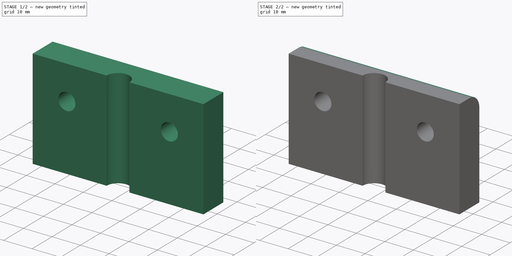
[diagram: build sequence overview — one tinted view per stage of 2, left to right]
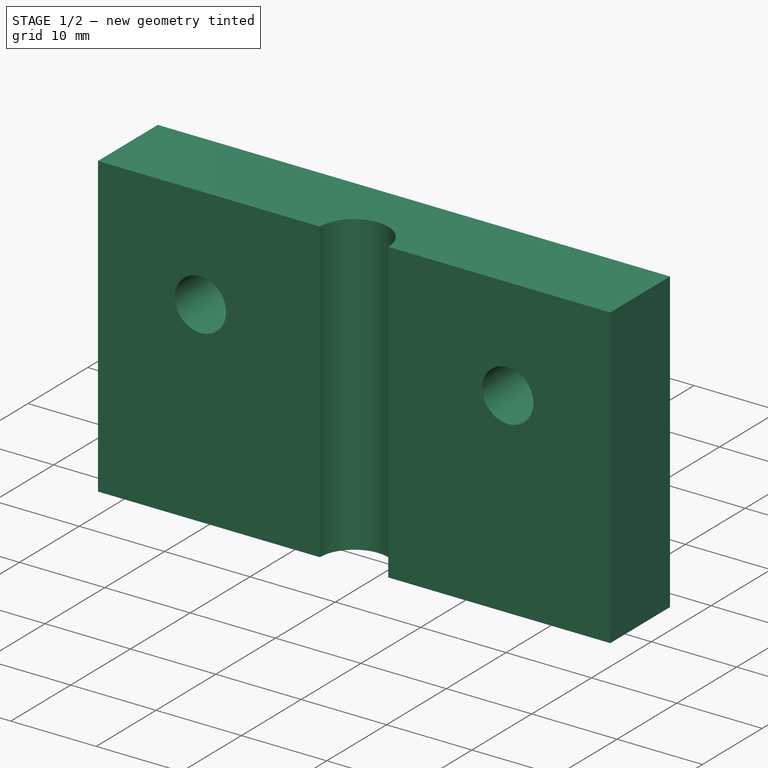
[diagram: stage 1 of 2 — iso view after this stage's code; geometry added in this stage tinted green]
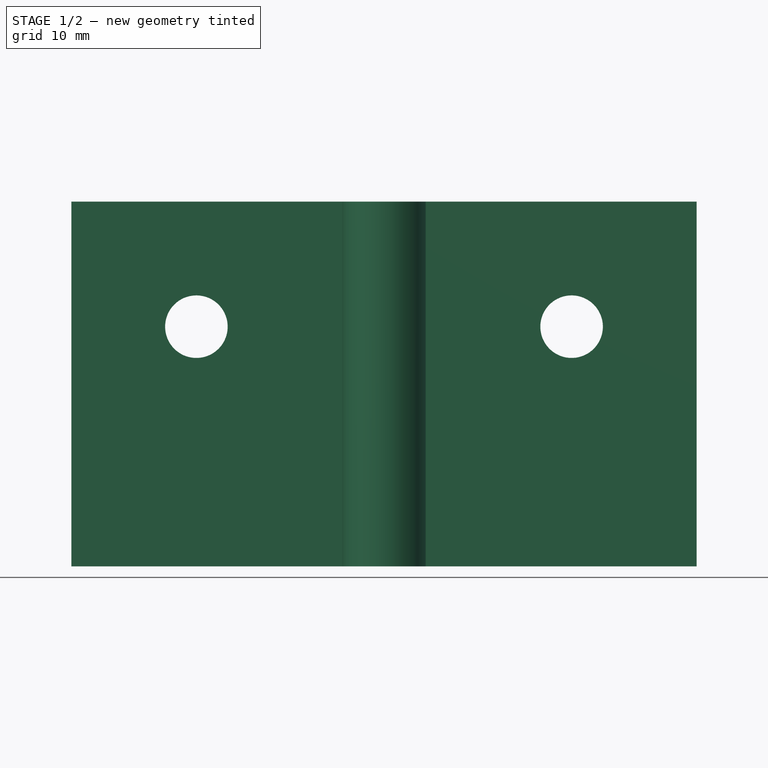
[diagram: stage 1 of 2 — front view after this stage's code; geometry added in this stage tinted green]
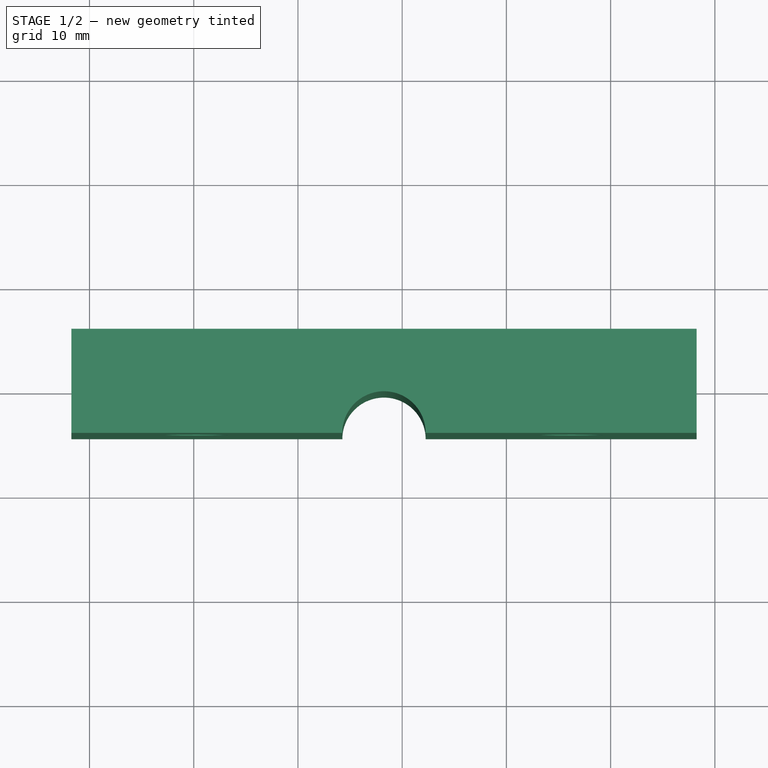
[diagram: stage 1 of 2 — top view after this stage's code; geometry added in this stage tinted green]
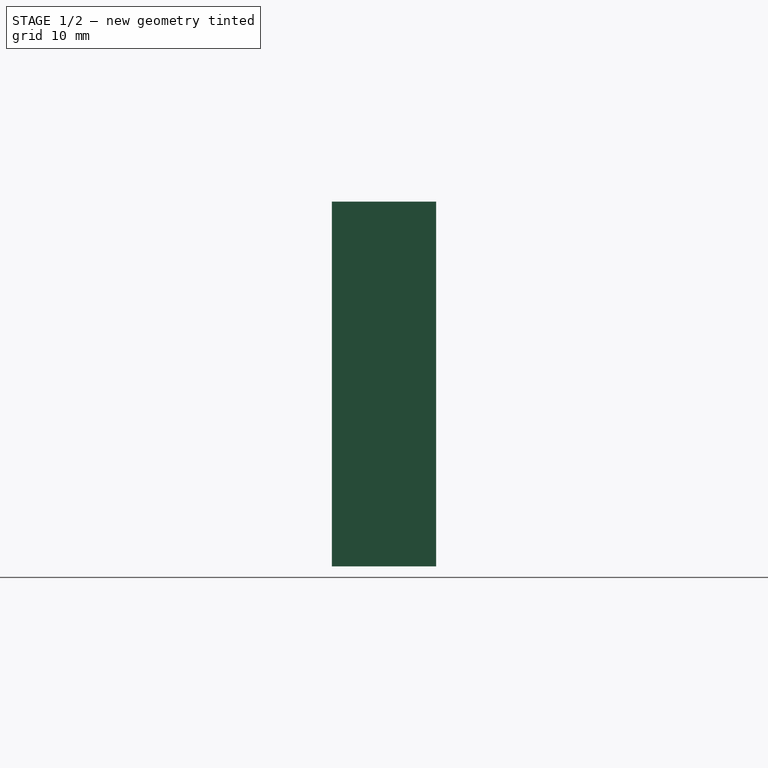
[diagram: stage 1 of 2 — right view after this stage's code; geometry added in this stage tinted green]
FCSTD DOCUMENT  (FreeCAD 0.16R6707 (Git))
Label: Z-Axis_AxisMount(NoMotorMount)
License: All rights reserved
LicenseURL: http://en.wikipedia.org/wiki/All_rights_reserved
objects: Sketcher::SketchObject×2, PartDesign::Pad×1, PartDesign::Pocket×1, PartDesign::Fillet×1
note: 7 computed .brp shape members not serialized (recipe doc carries the construction recipe); baked Part::Feature solids carry a one-line shape summary decoded from their .brp

FEATURE [Sketcher::SketchObject] Sketch
  sketch-geometry (6):
    g0: LineSegment StartX=-31.743 StartY=5.63276 StartZ=0 EndX=28.257 EndY=5.63276 EndZ=0
    g1: LineSegment StartX=28.257 StartY=5.63276 StartZ=0 EndX=28.257 EndY=-4.36724 EndZ=0
    g2: LineSegment StartX=-31.743 StartY=-4.36724 StartZ=0 EndX=-31.743 EndY=5.63276 EndZ=0
    g3: ArcOfCircle CenterX=-1.74304 CenterY=-4.36724 CenterZ=0 NormalX=0 NormalY=0 NormalZ=1 Radius=4 StartAngle=0 EndAngle=3.14159
    g4: LineSegment StartX=-31.743 StartY=-4.36724 StartZ=0 EndX=-5.74304 EndY=-4.36724 EndZ=0
    g5: LineSegment StartX=2.25696 StartY=-4.36724 StartZ=0 EndX=28.257 EndY=-4.36724 EndZ=0
  constraints (17):
    c: Coincident(g0,g1)
    c: Coincident(g2,g0)
    c: Horizontal(g0)
    c: Vertical(g1)
    c: Vertical(g2)
    c: DistanceY(g1) = -10
    c: DistanceX(g0) = 60
    c: Horizontal(g5)
    c: Horizontal(g4)
    c: Coincident(g4,g2)
    c: Coincident(g4,g3)
    c: Coincident(g3,g5)
    c: Coincident(g5,g1)
    c: Symmetric(g3,g3,g3)
    c: Equal(g4,g5)
    c: Radius(g3) = 4
    c: DistanceY(g3,g3) = 0
FEATURE [PartDesign::Pad] Pad
  Length = 35
  Length2 = 100
  Sketch = -> Sketch
  Type = 0
FEATURE [Sketcher::SketchObject] Sketch001
  ExternalGeometry = -> [Pad]
  Placement = pos=(0,5.63276,0) rot=(0,0.707107,0.707107;3.14159rad)
  Support = -> Pad [Face4]
  sketch-geometry (2):
    g0: Circle CenterX=-16.257 CenterY=23 CenterZ=0 NormalX=0 NormalY=0 NormalZ=1 Radius=3
    g1: Circle CenterX=19.743 CenterY=23 CenterZ=0 NormalX=0 NormalY=0 NormalZ=1 Radius=3
  constraints (6):
    c: DistanceY(g1,g0) = 0
    c: Radius(g1) = 3
    c: Equal(g1,g0)
    c: DistanceX(g0,g1) = 36
    c: DistanceX(g1,g-3) = 12
    c: DistanceY(g1,g-3) = 12
FEATURE [PartDesign::Pocket] Pocket
  Length = 10
  Sketch = -> Sketch001
  Type = 0
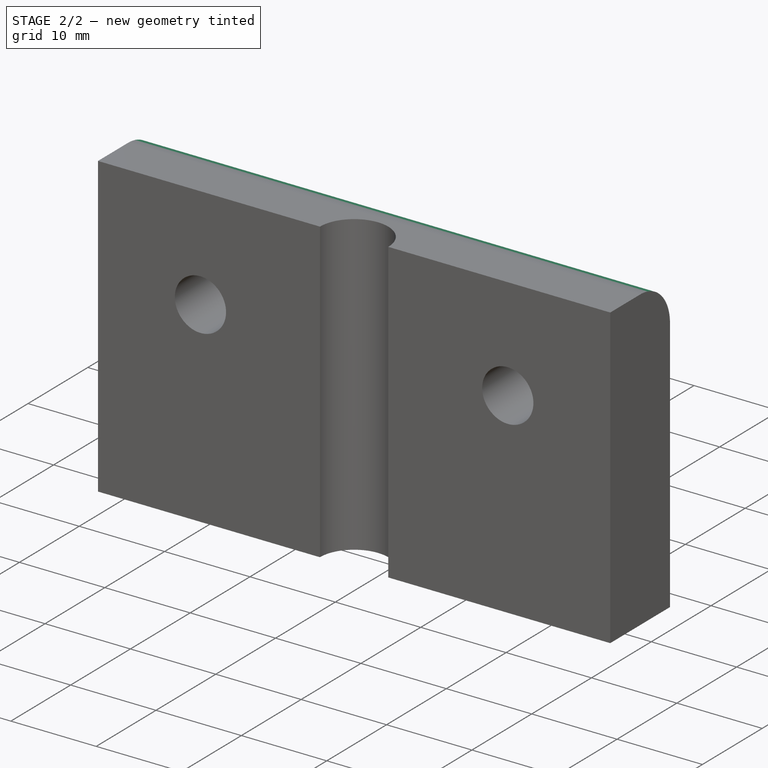
[diagram: stage 2 of 2 — iso view after this stage's code; geometry added in this stage tinted green]
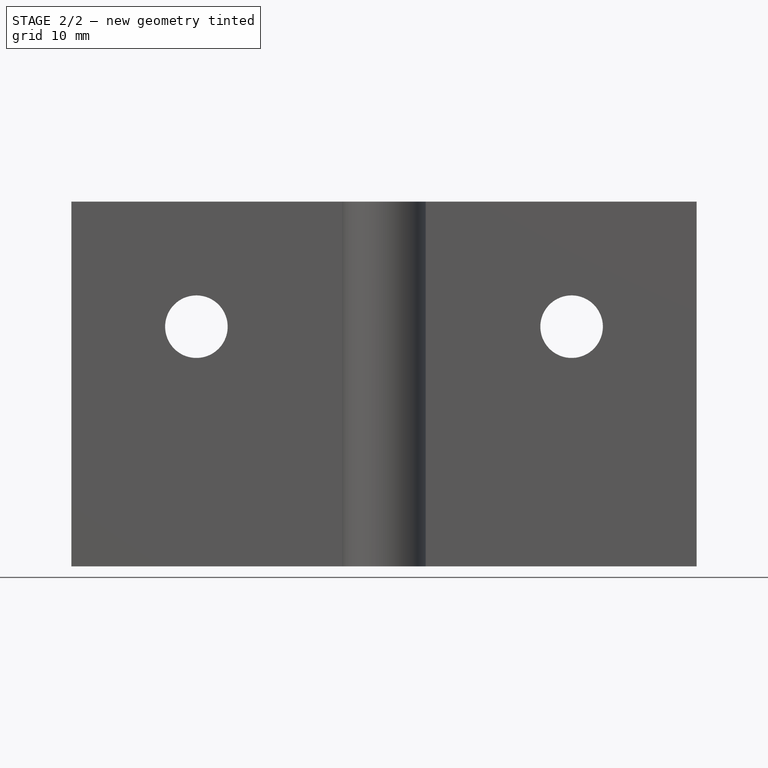
[diagram: stage 2 of 2 — front view after this stage's code; geometry added in this stage tinted green]
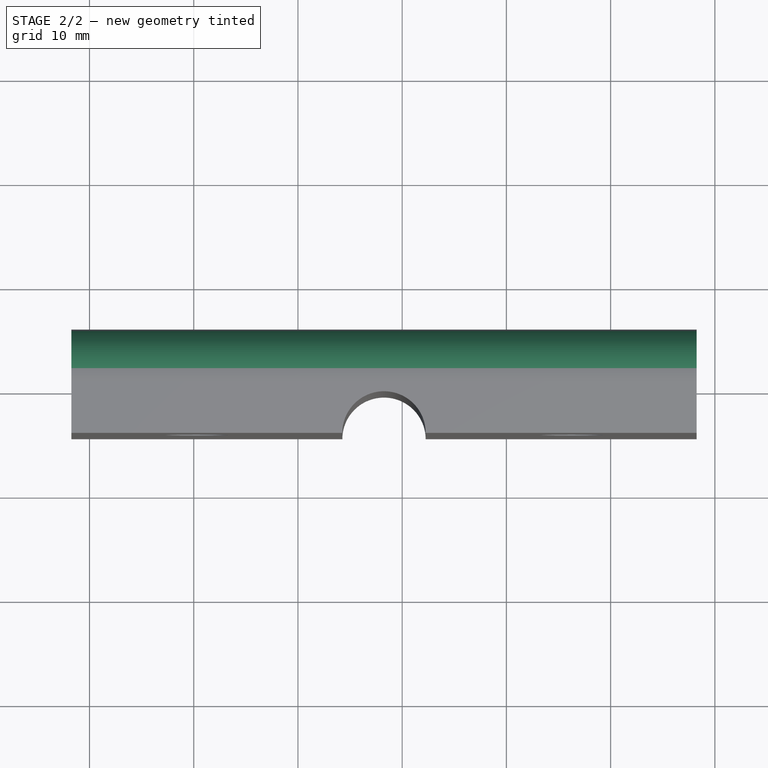
[diagram: stage 2 of 2 — top view after this stage's code; geometry added in this stage tinted green]
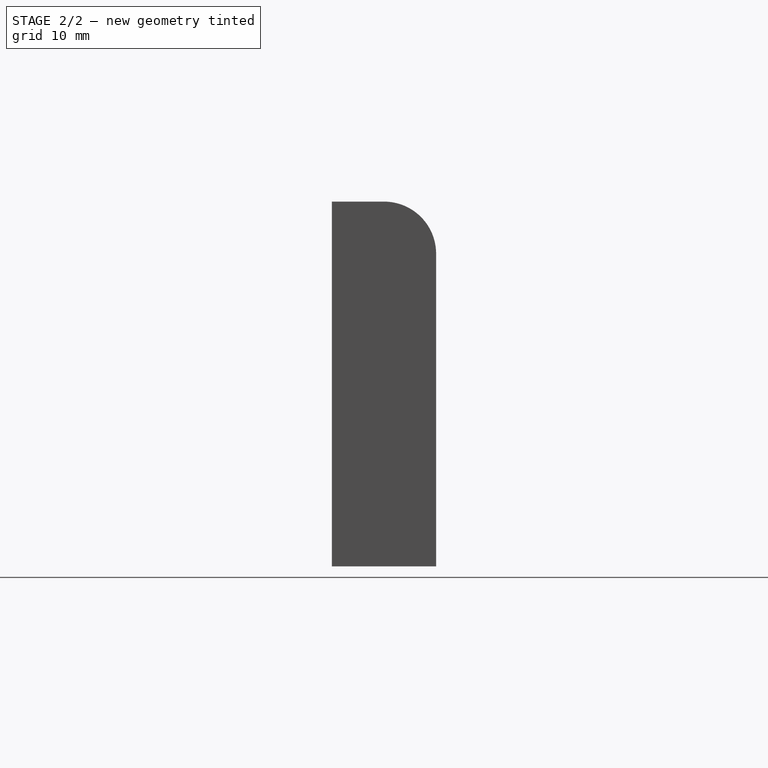
[diagram: stage 2 of 2 — right view after this stage's code; geometry added in this stage tinted green]
FEATURE [PartDesign::Fillet] Fillet
  Base = -> Pocket [Edge17]
  Radius = 5
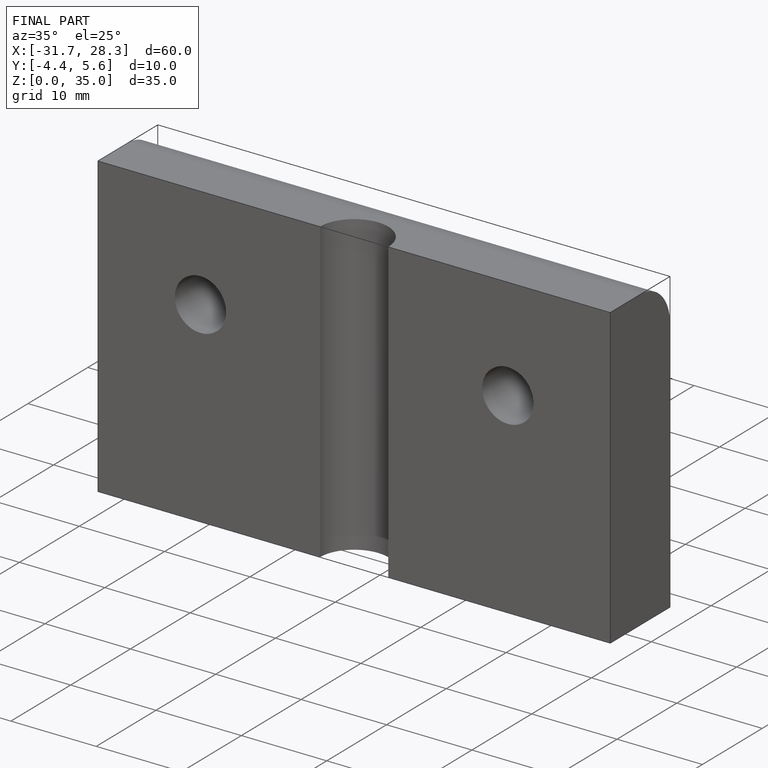
[diagram: finished part — iso view with bounding-box wireframe]
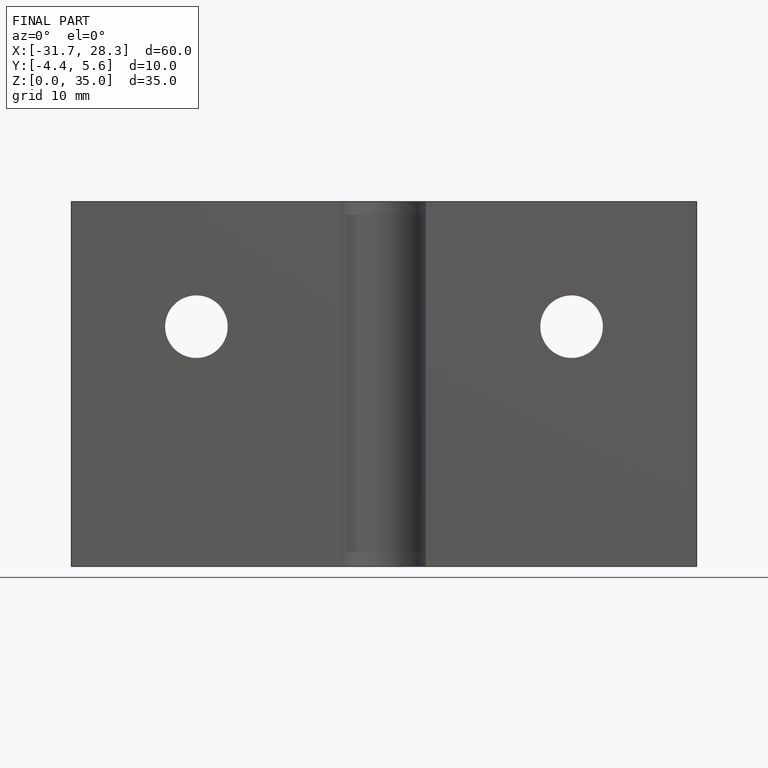
[diagram: finished part — front view with bounding-box wireframe]
